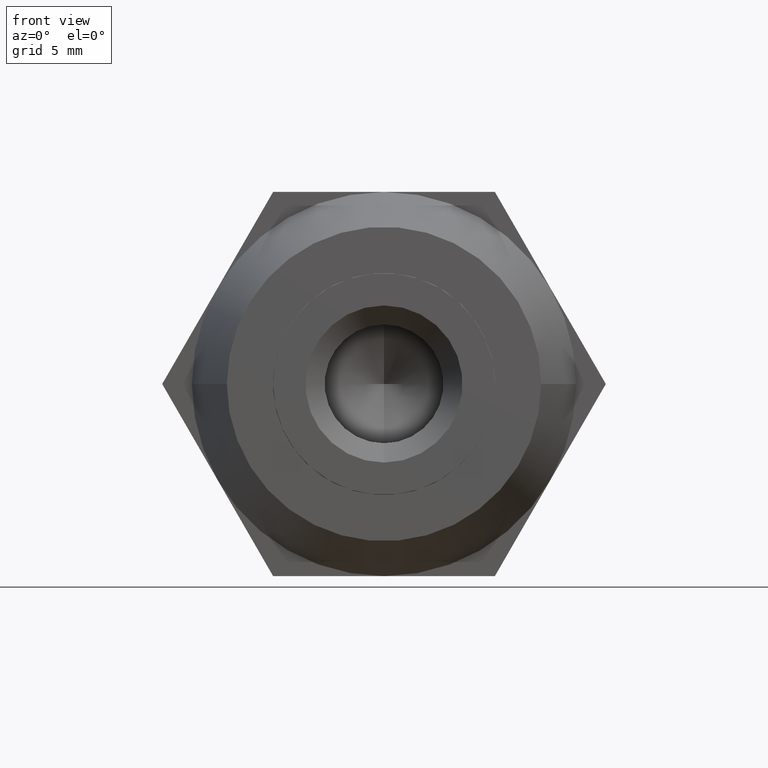
[diagram: clean part render]
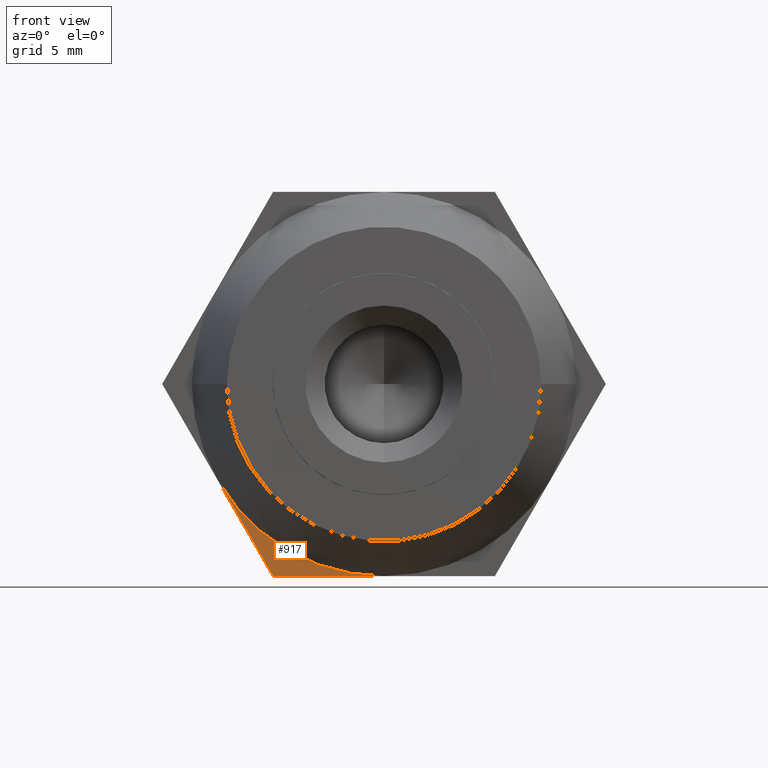
[diagram: same view with one face highlighted and labeled with its STEP entity id]
A machine part, front view. The second image highlights one B-rep face of the part: STEP entity #917.
In plain terms, the highlighted planar face has unit normal (0, 1, 0).
Its self-contained STEP definition (entity closure, byte-faithful):
#184 = ORIENTED_EDGE ( 'NONE', *, *, #2860, .F. ) ;
#206 = FACE_OUTER_BOUND ( 'NONE', #1383, .T. ) ;
#238 = VERTEX_POINT ( 'NONE', #1309 ) ;
#449 = EDGE_CURVE ( 'NONE', #2987, #238, #2088, .T. ) ;
#806 = DIRECTION ( 'NONE',  ( -1.000000000000000000, 0.0000000000000000000, 0.0000000000000000000 ) ) ;
#814 = DIRECTION ( 'NONE',  ( 0.0000000000000000000, 1.000000000000000000, 0.0000000000000000000 ) ) ;
#917 = ADVANCED_FACE ( 'NONE', ( #206 ), #1382, .F. ) ;
#1038 = CARTESIAN_POINT ( 'NONE',  ( 1.836970198721030000E-015, -2.500000000000000000, -11.00000000000000000 ) ) ;
#1081 = CARTESIAN_POINT ( 'NONE',  ( 0.0000000000000000000, -2.500000000000000000, 0.0000000000000000000 ) ) ;
#1135 = CARTESIAN_POINT ( 'NONE',  ( 6.350852961085879900, -2.500000000000000000, -11.00000000000000000 ) ) ;
#1255 = ORIENTED_EDGE ( 'NONE', *, *, #3176, .T. ) ;
#1309 = CARTESIAN_POINT ( 'NONE',  ( -9.526279441628821200, -2.500000000000000000, -5.500000000000000000 ) ) ;
#1310 = VECTOR ( 'NONE', #3430, 1000.000000000000000 ) ;
#1382 = PLANE ( 'NONE',  #3230 ) ;
#1383 = EDGE_LOOP ( 'NONE', ( #184, #1255, #2773 ) ) ;
#1617 = CARTESIAN_POINT ( 'NONE',  ( -6.350852961085879900, -2.500000000000000000, -11.00000000000000000 ) ) ;
#1715 = DIRECTION ( 'NONE',  ( 0.0000000000000000000, 0.0000000000000000000, 1.000000000000000000 ) ) ;
#1856 = CARTESIAN_POINT ( 'NONE',  ( 1.836970198721030000E-015, -2.500000000000000000, 2.694222958124174500E-016 ) ) ;
#1883 = DIRECTION ( 'NONE',  ( 0.0000000000000000000, 0.0000000000000000000, 1.000000000000000000 ) ) ;
#2080 = CARTESIAN_POINT ( 'NONE',  ( -6.350852961085879900, -2.500000000000000000, -11.00000000000000000 ) ) ;
#2088 = LINE ( 'NONE', #1617, #1310 ) ;
#2163 = VERTEX_POINT ( 'NONE', #1038 ) ;
#2773 = ORIENTED_EDGE ( 'NONE', *, *, #449, .F. ) ;
#2783 = VECTOR ( 'NONE', #806, 1000.000000000000000 ) ;
#2860 = EDGE_CURVE ( 'NONE', #2163, #2987, #3789, .T. ) ;
#2987 = VERTEX_POINT ( 'NONE', #2080 ) ;
#3056 = DIRECTION ( 'NONE',  ( 0.0000000000000000000, 1.000000000000000000, 0.0000000000000000000 ) ) ;
#3099 = AXIS2_PLACEMENT_3D ( 'NONE', #1856, #3056, #1883 ) ;
#3176 = EDGE_CURVE ( 'NONE', #2163, #238, #3287, .T. ) ;
#3230 = AXIS2_PLACEMENT_3D ( 'NONE', #1081, #814, #1715 ) ;
#3287 = CIRCLE ( 'NONE', #3099, 11.00000000000000000 ) ;
#3430 = DIRECTION ( 'NONE',  ( -0.4999999999999998900, 0.0000000000000000000, 0.8660254037844387100 ) ) ;
#3789 = LINE ( 'NONE', #1135, #2783 ) ;